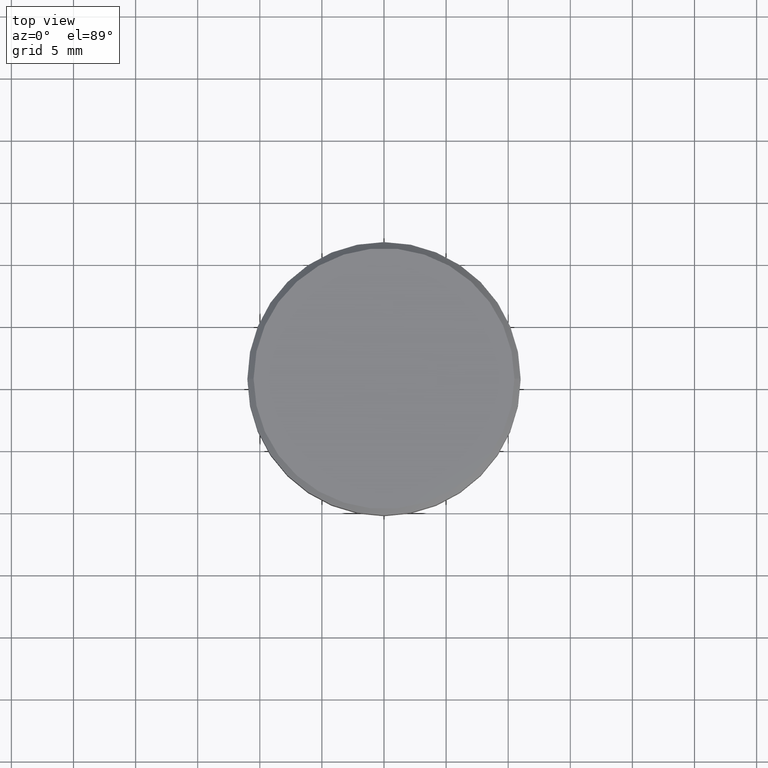
[diagram: clean part render]
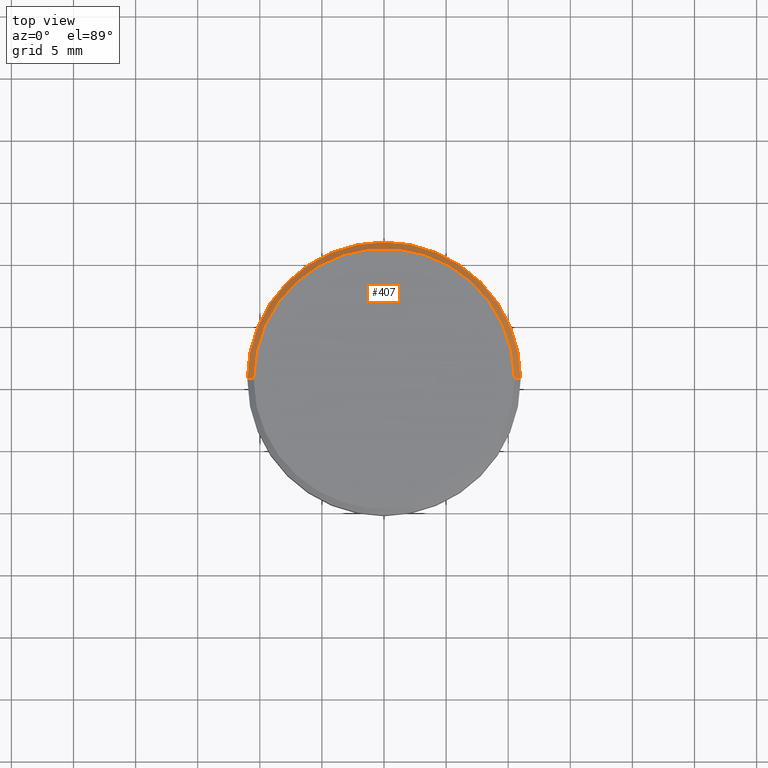
[diagram: same view with one face highlighted and labeled with its STEP entity id]
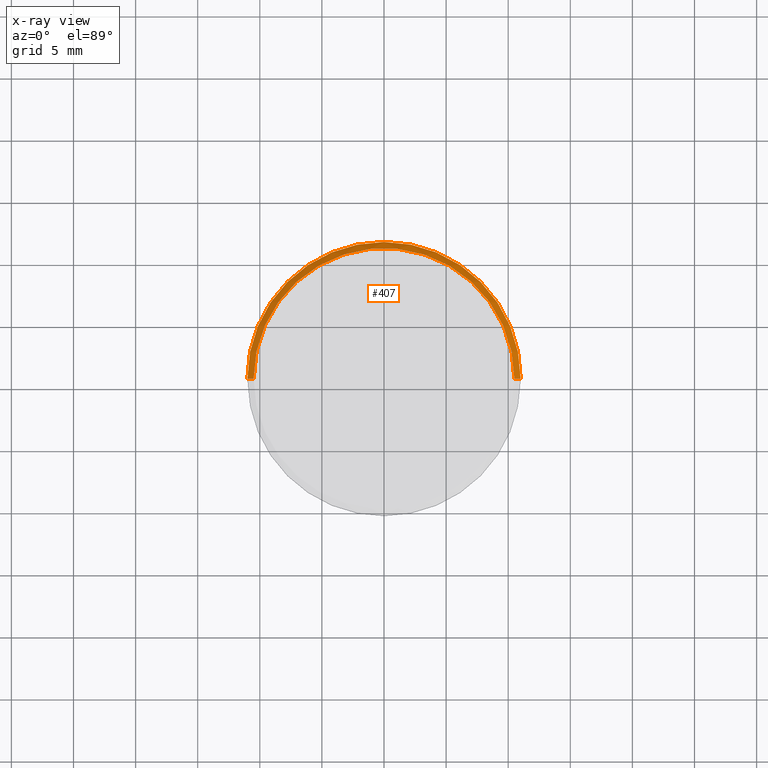
[diagram: x-ray of the same camera — body ghosted, the highlighted face saturated]
A machine part, top view. The second image highlights one B-rep face of the part: STEP entity #407.
The next image is the same camera in x-ray: the body ghosted, the highlighted face saturated — about 0% of this face is hidden behind the body in this view.
In plain terms, the highlighted conical surface has half-angle 45 deg.
Its self-contained STEP definition (entity closure, byte-faithful):
#7 = DIRECTION ( 'NONE',  ( 0.7071067811865451302, 8.659560562354904508E-17, -0.7071067811865500152 ) ) ;
#22 = DIRECTION ( 'NONE',  ( -1.000000000000000000, 0.000000000000000000, 0.000000000000000000 ) ) ;
#33 = VERTEX_POINT ( 'NONE', #257 ) ;
#57 = FACE_OUTER_BOUND ( 'NONE', #218, .T. ) ;
#59 = DIRECTION ( 'NONE',  ( -0.000000000000000000, -0.000000000000000000, 1.000000000000000000 ) ) ;
#67 = LINE ( 'NONE', #406, #254 ) ;
#74 = ORIENTED_EDGE ( 'NONE', *, *, #140, .F. ) ;
#94 = CIRCLE ( 'NONE', #304, 11.00000000000000000 ) ;
#99 = ORIENTED_EDGE ( 'NONE', *, *, #192, .F. ) ;
#122 = CARTESIAN_POINT ( 'NONE',  ( 10.49999999999999467, 1.316495309083404420E-15, 0.000000000000000000 ) ) ;
#135 = DIRECTION ( 'NONE',  ( 0.000000000000000000, 0.000000000000000000, -1.000000000000000000 ) ) ;
#140 = EDGE_CURVE ( 'NONE', #308, #33, #94, .T. ) ;
#142 = CARTESIAN_POINT ( 'NONE',  ( 0.000000000000000000, 0.000000000000000000, 0.000000000000000000 ) ) ;
#156 = CARTESIAN_POINT ( 'NONE',  ( -10.49999999999999467, 0.000000000000000000, 0.000000000000000000 ) ) ;
#167 = CONICAL_SURFACE ( 'NONE', #221, 10.49999999999999467, 0.7853981633974447263 ) ;
#184 = DIRECTION ( 'NONE',  ( 1.000000000000000000, 0.000000000000000000, 0.000000000000000000 ) ) ;
#192 = EDGE_CURVE ( 'NONE', #351, #323, #363, .T. ) ;
#218 = EDGE_LOOP ( 'NONE', ( #99, #270, #74, #347 ) ) ;
#221 = AXIS2_PLACEMENT_3D ( 'NONE', #299, #135, #22 ) ;
#244 = CARTESIAN_POINT ( 'NONE',  ( -11.00000000000000000, 1.347111479062088405E-15, -0.5000000000000073275 ) ) ;
#254 = VECTOR ( 'NONE', #7, 1000.000000000000114 ) ;
#257 = CARTESIAN_POINT ( 'NONE',  ( 11.00000000000000000, 0.000000000000000000, -0.5000000000000073275 ) ) ;
#259 = AXIS2_PLACEMENT_3D ( 'NONE', #142, #59, #184 ) ;
#262 = DIRECTION ( 'NONE',  ( 1.000000000000000000, 0.000000000000000000, 0.000000000000000000 ) ) ;
#264 = VECTOR ( 'NONE', #267, 1000.000000000000114 ) ;
#267 = DIRECTION ( 'NONE',  ( -0.7071067811865451302, 0.000000000000000000, -0.7071067811865500152 ) ) ;
#270 = ORIENTED_EDGE ( 'NONE', *, *, #303, .T. ) ;
#281 = EDGE_CURVE ( 'NONE', #323, #308, #387, .T. ) ;
#299 = CARTESIAN_POINT ( 'NONE',  ( 0.000000000000000000, 0.000000000000000000, 0.000000000000000000 ) ) ;
#303 = EDGE_CURVE ( 'NONE', #351, #33, #67, .T. ) ;
#304 = AXIS2_PLACEMENT_3D ( 'NONE', #376, #311, #262 ) ;
#308 = VERTEX_POINT ( 'NONE', #244 ) ;
#311 = DIRECTION ( 'NONE',  ( 0.000000000000000000, 0.000000000000000000, -1.000000000000000000 ) ) ;
#323 = VERTEX_POINT ( 'NONE', #335 ) ;
#335 = CARTESIAN_POINT ( 'NONE',  ( -10.49999999999999467, 0.000000000000000000, 0.000000000000000000 ) ) ;
#347 = ORIENTED_EDGE ( 'NONE', *, *, #281, .F. ) ;
#351 = VERTEX_POINT ( 'NONE', #122 ) ;
#363 = CIRCLE ( 'NONE', #259, 10.49999999999999467 ) ;
#376 = CARTESIAN_POINT ( 'NONE',  ( 0.000000000000000000, 0.000000000000000000, -0.5000000000000073275 ) ) ;
#387 = LINE ( 'NONE', #156, #264 ) ;
#406 = CARTESIAN_POINT ( 'NONE',  ( 10.49999999999999467, 1.285879139104720239E-15, 0.000000000000000000 ) ) ;
#407 = ADVANCED_FACE ( 'NONE', ( #57 ), #167, .T. ) ;